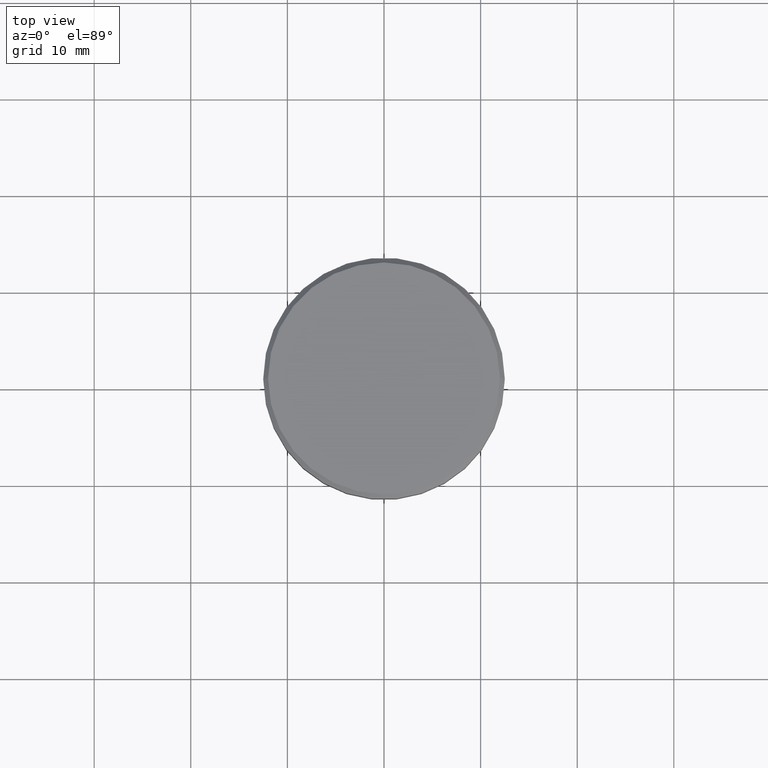
[diagram: clean part render]
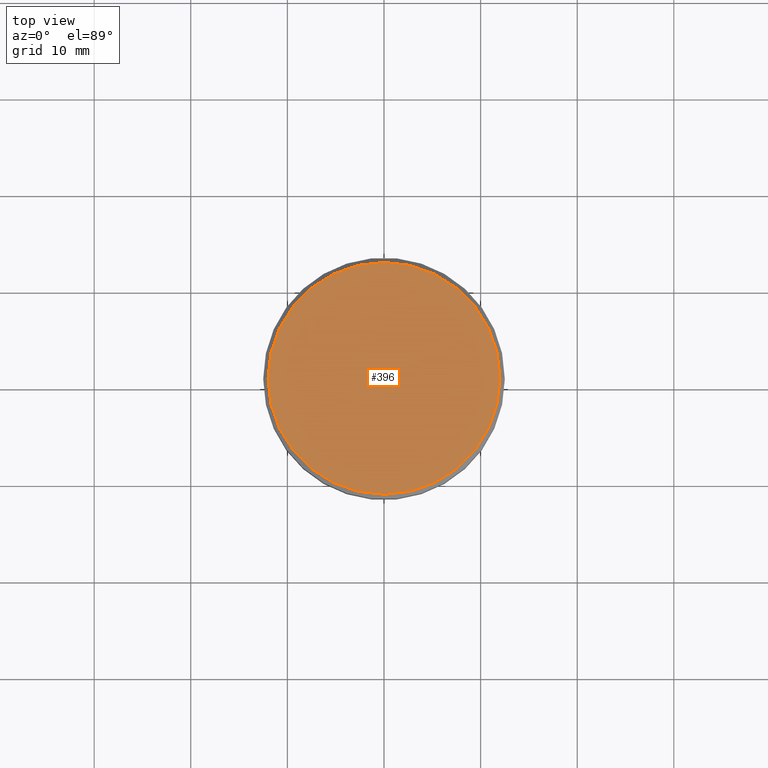
[diagram: same view with one face highlighted and labeled with its STEP entity id]
A machine part, top view. The second image highlights one B-rep face of the part: STEP entity #396.
In plain terms, the highlighted planar face has unit normal (0, -0, 1).
Its self-contained STEP definition (entity closure, byte-faithful):
#48 = DIRECTION ( 'NONE',  ( 1.000000000000000000, 0.000000000000000000, 0.000000000000000000 ) ) ;
#108 = DIRECTION ( 'NONE',  ( -0.000000000000000000, -0.000000000000000000, 1.000000000000000000 ) ) ;
#111 = CARTESIAN_POINT ( 'NONE',  ( 11.99999999999998934, 1.500192328955507143E-15, 0.000000000000000000 ) ) ;
#171 = EDGE_CURVE ( 'NONE', #1163, #406, #932, .T. ) ;
#223 = DIRECTION ( 'NONE',  ( 0.000000000000000000, -0.000000000000000000, 1.000000000000000000 ) ) ;
#396 = ADVANCED_FACE ( 'NONE', ( #1035 ), #678, .T. ) ;
#406 = VERTEX_POINT ( 'NONE', #1131 ) ;
#422 = AXIS2_PLACEMENT_3D ( 'NONE', #736, #108, #623 ) ;
#527 = ORIENTED_EDGE ( 'NONE', *, *, #568, .T. ) ;
#568 = EDGE_CURVE ( 'NONE', #406, #1163, #858, .T. ) ;
#623 = DIRECTION ( 'NONE',  ( 1.000000000000000000, 0.000000000000000000, 0.000000000000000000 ) ) ;
#678 = PLANE ( 'NONE',  #725 ) ;
#694 = ORIENTED_EDGE ( 'NONE', *, *, #171, .T. ) ;
#725 = AXIS2_PLACEMENT_3D ( 'NONE', #1123, #223, #48 ) ;
#736 = CARTESIAN_POINT ( 'NONE',  ( 0.000000000000000000, 0.000000000000000000, 0.000000000000000000 ) ) ;
#739 = EDGE_LOOP ( 'NONE', ( #527, #694 ) ) ;
#785 = DIRECTION ( 'NONE',  ( -0.000000000000000000, -0.000000000000000000, 1.000000000000000000 ) ) ;
#858 = CIRCLE ( 'NONE', #1166, 11.99999999999998934 ) ;
#932 = CIRCLE ( 'NONE', #422, 11.99999999999998934 ) ;
#968 = CARTESIAN_POINT ( 'NONE',  ( 0.000000000000000000, 0.000000000000000000, 0.000000000000000000 ) ) ;
#1035 = FACE_OUTER_BOUND ( 'NONE', #739, .T. ) ;
#1123 = CARTESIAN_POINT ( 'NONE',  ( 0.000000000000000000, 0.000000000000000000, 0.000000000000000000 ) ) ;
#1131 = CARTESIAN_POINT ( 'NONE',  ( -11.99999999999998934, 0.000000000000000000, 0.000000000000000000 ) ) ;
#1155 = DIRECTION ( 'NONE',  ( 1.000000000000000000, 0.000000000000000000, 0.000000000000000000 ) ) ;
#1163 = VERTEX_POINT ( 'NONE', #111 ) ;
#1166 = AXIS2_PLACEMENT_3D ( 'NONE', #968, #785, #1155 ) ;